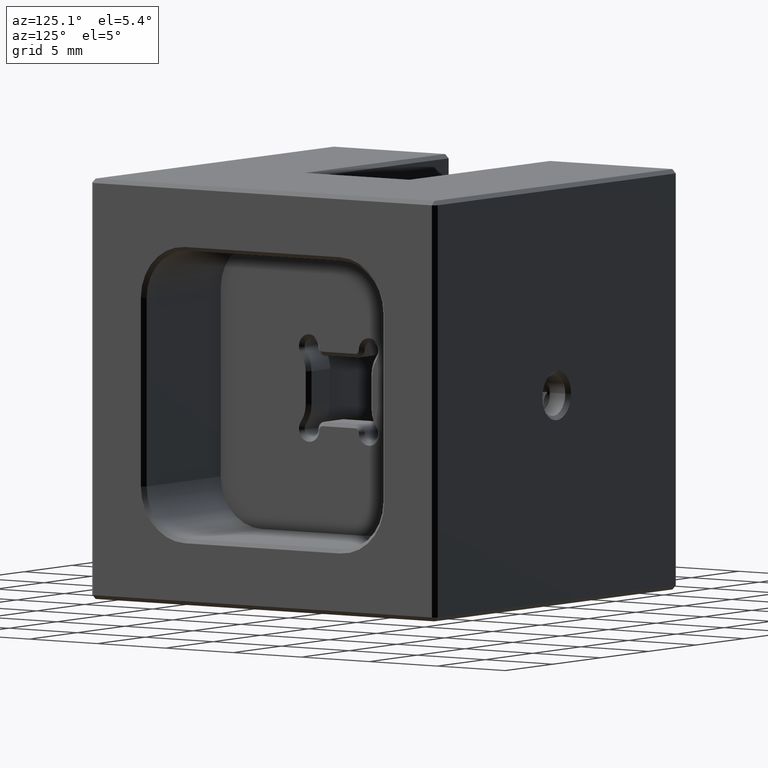
[diagram: clean part render]
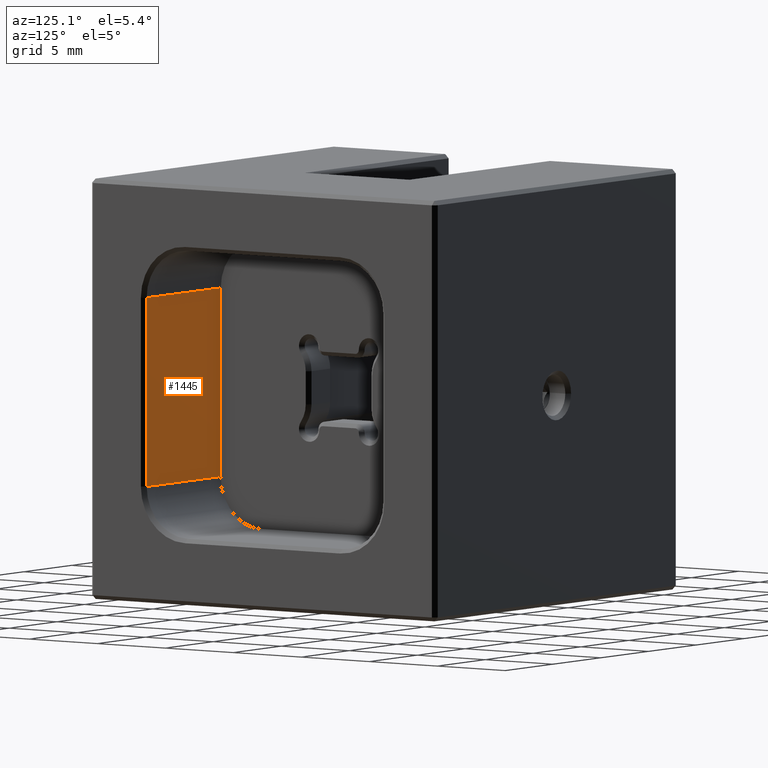
[diagram: same view with one face highlighted and labeled with its STEP entity id]
A machine part, auxiliary view. The second image highlights one B-rep face of the part: STEP entity #1445.
In plain terms, the highlighted planar face has unit normal (0, -1, 0).
Its self-contained STEP definition (entity closure, byte-faithful):
#39 = CARTESIAN_POINT ( 'NONE',  ( 12.45000000000000284, -8.699999999999997513, 5.699999999999997513 ) ) ;
#197 = DIRECTION ( 'NONE',  ( 0.000000000000000000, -1.000000000000000000, 0.000000000000000000 ) ) ;
#408 = EDGE_CURVE ( 'NONE', #6323, #4198, #6233, .T. ) ;
#514 = CARTESIAN_POINT ( 'NONE',  ( 4.699999999999995737, -8.699999999999997513, -5.699999999999998401 ) ) ;
#574 = ORIENTED_EDGE ( 'NONE', *, *, #408, .T. ) ;
#751 = DIRECTION ( 'NONE',  ( 0.000000000000000000, 0.000000000000000000, -1.000000000000000000 ) ) ;
#786 = EDGE_LOOP ( 'NONE', ( #5904, #1697, #574, #3570 ) ) ;
#809 = LINE ( 'NONE', #6248, #2360 ) ;
#1188 = VECTOR ( 'NONE', #751, 1000.000000000000000 ) ;
#1408 = VECTOR ( 'NONE', #5269, 1000.000000000000000 ) ;
#1445 = ADVANCED_FACE ( 'NONE', ( #1684 ), #3693, .F. ) ;
#1661 = CARTESIAN_POINT ( 'NONE',  ( 4.699999999999995737, -8.699999999999997513, -5.699999999999999289 ) ) ;
#1684 = FACE_OUTER_BOUND ( 'NONE', #786, .T. ) ;
#1697 = ORIENTED_EDGE ( 'NONE', *, *, #2879, .T. ) ;
#1737 = CARTESIAN_POINT ( 'NONE',  ( 12.45000000000000284, -8.699999999999997513, -5.699999999999999289 ) ) ;
#1757 = DIRECTION ( 'NONE',  ( 1.000000000000000000, 0.000000000000000000, 0.000000000000000000 ) ) ;
#1831 = VECTOR ( 'NONE', #2166, 1000.000000000000000 ) ;
#2166 = DIRECTION ( 'NONE',  ( -1.000000000000000000, -0.000000000000000000, -0.000000000000000000 ) ) ;
#2360 = VECTOR ( 'NONE', #1757, 1000.000000000000000 ) ;
#2879 = EDGE_CURVE ( 'NONE', #3305, #6323, #3260, .T. ) ;
#3260 = LINE ( 'NONE', #5646, #1188 ) ;
#3305 = VERTEX_POINT ( 'NONE', #39 ) ;
#3570 = ORIENTED_EDGE ( 'NONE', *, *, #4472, .F. ) ;
#3607 = EDGE_CURVE ( 'NONE', #3943, #3305, #809, .T. ) ;
#3693 = PLANE ( 'NONE',  #3790 ) ;
#3790 = AXIS2_PLACEMENT_3D ( 'NONE', #6155, #197, #5102 ) ;
#3943 = VERTEX_POINT ( 'NONE', #6016 ) ;
#4198 = VERTEX_POINT ( 'NONE', #514 ) ;
#4472 = EDGE_CURVE ( 'NONE', #3943, #4198, #5505, .T. ) ;
#4862 = CARTESIAN_POINT ( 'NONE',  ( 4.699999999999995737, -8.699999999999997513, 8.699999999999997513 ) ) ;
#5102 = DIRECTION ( 'NONE',  ( 1.000000000000000000, 0.000000000000000000, 0.000000000000000000 ) ) ;
#5269 = DIRECTION ( 'NONE',  ( 0.000000000000000000, 0.000000000000000000, -1.000000000000000000 ) ) ;
#5505 = LINE ( 'NONE', #4862, #1408 ) ;
#5646 = CARTESIAN_POINT ( 'NONE',  ( 12.45000000000000284, -8.699999999999997513, 8.699999999999997513 ) ) ;
#5904 = ORIENTED_EDGE ( 'NONE', *, *, #3607, .T. ) ;
#6016 = CARTESIAN_POINT ( 'NONE',  ( 4.699999999999995737, -8.699999999999997513, 5.699999999999997513 ) ) ;
#6155 = CARTESIAN_POINT ( 'NONE',  ( 4.699999999999995737, -8.699999999999997513, 8.699999999999997513 ) ) ;
#6233 = LINE ( 'NONE', #1661, #1831 ) ;
#6248 = CARTESIAN_POINT ( 'NONE',  ( 12.69999999999999574, -8.699999999999997513, 5.699999999999997513 ) ) ;
#6323 = VERTEX_POINT ( 'NONE', #1737 ) ;